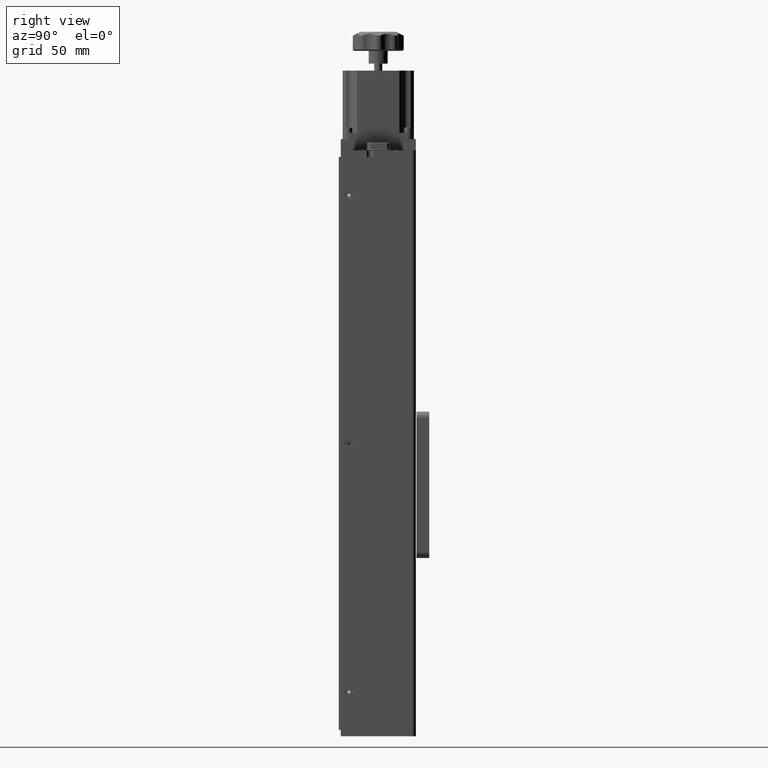
[diagram: clean part render]
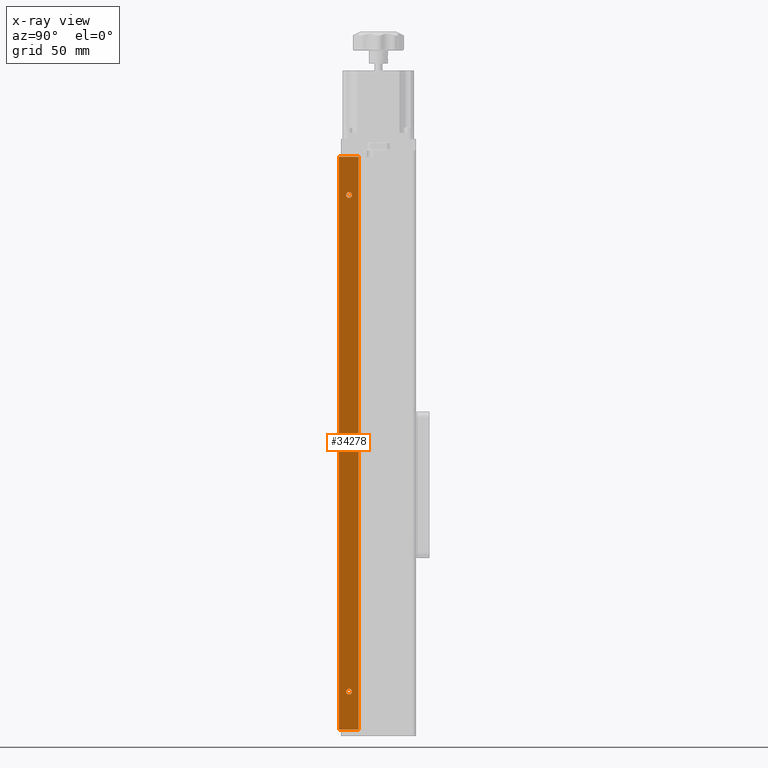
[diagram: x-ray — body ghosted, one internal face saturated and labeled with its STEP entity id]
A machine part, right view, then the same camera in x-ray: the body is ghosted and one INTERNAL B-rep face — a face not visible from any outside direction — is saturated and labeled: STEP entity #34278.
In plain terms, the highlighted planar face has unit normal (1, 0, 0).
Its self-contained STEP definition (entity closure, byte-faithful):
#306 = AXIS2_PLACEMENT_3D ( 'NONE', #2982, #26098, #6286 ) ;
#632 = AXIS2_PLACEMENT_3D ( 'NONE', #38004, #18229, #41346 ) ;
#735 = DIRECTION ( 'NONE',  ( 0.0000000000000000000, 0.0000000000000000000, -1.000000000000000000 ) ) ;
#2041 = CARTESIAN_POINT ( 'NONE',  ( -69.61080835603993900, -10.41765062064795300, 225.0000000000000300 ) ) ;
#2102 = CARTESIAN_POINT ( 'NONE',  ( -69.61080835603993900, -2.417650620647951800, -195.0000000000000300 ) ) ;
#2116 = CIRCLE ( 'NONE', #30042, 2.250000000000029800 ) ;
#2982 = CARTESIAN_POINT ( 'NONE',  ( -69.61080835603993900, -2.417650620647951800, 195.0000000000000300 ) ) ;
#3866 = ORIENTED_EDGE ( 'NONE', *, *, #15342, .F. ) ;
#4571 = CARTESIAN_POINT ( 'NONE',  ( -69.61080835603993900, 5.082349379352006500, -225.0000000000000300 ) ) ;
#5332 = CARTESIAN_POINT ( 'NONE',  ( -69.61080835603993900, 8.829045197376977700, -225.0000000000000300 ) ) ;
#5394 = DIRECTION ( 'NONE',  ( 0.0000000000000000000, 0.0000000000000000000, -1.000000000000000000 ) ) ;
#5622 = VERTEX_POINT ( 'NONE', #29324 ) ;
#6286 = DIRECTION ( 'NONE',  ( 0.0000000000000000000, 0.0000000000000000000, -1.000000000000000000 ) ) ;
#6471 = VECTOR ( 'NONE', #25131, 1000.000000000000000 ) ;
#7500 = LINE ( 'NONE', #5332, #6471 ) ;
#7646 = EDGE_CURVE ( 'NONE', #10640, #13751, #2116, .T. ) ;
#7776 = DIRECTION ( 'NONE',  ( 1.000000000000000000, 0.0000000000000000000, 0.0000000000000000000 ) ) ;
#7921 = AXIS2_PLACEMENT_3D ( 'NONE', #32620, #12791, #35919 ) ;
#8473 = FACE_OUTER_BOUND ( 'NONE', #37467, .T. ) ;
#8854 = CARTESIAN_POINT ( 'NONE',  ( -69.61080835603993900, -10.41765062064795100, -225.0000000000000300 ) ) ;
#10322 = ORIENTED_EDGE ( 'NONE', *, *, #20515, .T. ) ;
#10487 = ORIENTED_EDGE ( 'NONE', *, *, #38634, .T. ) ;
#10640 = VERTEX_POINT ( 'NONE', #36114 ) ;
#12181 = DIRECTION ( 'NONE',  ( 0.0000000000000000000, 0.0000000000000000000, -1.000000000000000000 ) ) ;
#12572 = CIRCLE ( 'NONE', #7921, 2.250000000000029800 ) ;
#12590 = CARTESIAN_POINT ( 'NONE',  ( -69.61080835603993900, 5.082349379352006500, 225.0000000000000300 ) ) ;
#12791 = DIRECTION ( 'NONE',  ( 1.000000000000000000, 0.0000000000000000000, 0.0000000000000000000 ) ) ;
#13013 = CIRCLE ( 'NONE', #36101, 2.250000000000029800 ) ;
#13751 = VERTEX_POINT ( 'NONE', #26458 ) ;
#13883 = CARTESIAN_POINT ( 'NONE',  ( -69.61080835603993900, -2.417650620647951800, -197.2500000000000600 ) ) ;
#15342 = EDGE_CURVE ( 'NONE', #38366, #18586, #7500, .T. ) ;
#15412 = CARTESIAN_POINT ( 'NONE',  ( -69.61080835603993900, 5.082349379352006500, 225.0000000000000300 ) ) ;
#15478 = CARTESIAN_POINT ( 'NONE',  ( -69.61080835603993900, 8.829045197376977700, 225.0000000000000300 ) ) ;
#15797 = LINE ( 'NONE', #15412, #41140 ) ;
#16896 = EDGE_CURVE ( 'NONE', #27736, #22071, #22205, .T. ) ;
#17250 = FACE_BOUND ( 'NONE', #40806, .T. ) ;
#17355 = DIRECTION ( 'NONE',  ( 1.000000000000000000, 0.0000000000000000000, 0.0000000000000000000 ) ) ;
#17584 = ORIENTED_EDGE ( 'NONE', *, *, #26678, .T. ) ;
#17613 = ORIENTED_EDGE ( 'NONE', *, *, #36895, .F. ) ;
#18229 = DIRECTION ( 'NONE',  ( 1.000000000000000000, 0.0000000000000000000, 0.0000000000000000000 ) ) ;
#18264 = AXIS2_PLACEMENT_3D ( 'NONE', #27626, #7776, #30956 ) ;
#18586 = VERTEX_POINT ( 'NONE', #4571 ) ;
#18742 = DIRECTION ( 'NONE',  ( -0.0000000000000000000, 0.0000000000000000000, 1.000000000000000000 ) ) ;
#18907 = VECTOR ( 'NONE', #38601, 1000.000000000000000 ) ;
#19064 = ORIENTED_EDGE ( 'NONE', *, *, #7646, .T. ) ;
#19788 = VERTEX_POINT ( 'NONE', #2041 ) ;
#19907 = LINE ( 'NONE', #15478, #18907 ) ;
#20493 = DIRECTION ( 'NONE',  ( 1.000000000000000000, 0.0000000000000000000, 0.0000000000000000000 ) ) ;
#20515 = EDGE_CURVE ( 'NONE', #19788, #37581, #19907, .T. ) ;
#21382 = PLANE ( 'NONE',  #632 ) ;
#22071 = VERTEX_POINT ( 'NONE', #31851 ) ;
#22205 = CIRCLE ( 'NONE', #18264, 2.250000000000029800 ) ;
#23199 = ORIENTED_EDGE ( 'NONE', *, *, #30597, .T. ) ;
#25131 = DIRECTION ( 'NONE',  ( -0.0000000000000000000, 1.000000000000000000, -0.0000000000000000000 ) ) ;
#25195 = DIRECTION ( 'NONE',  ( 1.000000000000000000, 0.0000000000000000000, 0.0000000000000000000 ) ) ;
#25247 = EDGE_CURVE ( 'NONE', #28830, #5622, #13013, .T. ) ;
#26098 = DIRECTION ( 'NONE',  ( 1.000000000000000000, 0.0000000000000000000, 0.0000000000000000000 ) ) ;
#26458 = CARTESIAN_POINT ( 'NONE',  ( -69.61080835603993900, -2.417650620647951800, 192.7500000000000000 ) ) ;
#26678 = EDGE_CURVE ( 'NONE', #22071, #27736, #12572, .T. ) ;
#27626 = CARTESIAN_POINT ( 'NONE',  ( -69.61080835603993900, -2.417650620647951800, 2.775557561562891400E-014 ) ) ;
#27736 = VERTEX_POINT ( 'NONE', #38140 ) ;
#28830 = VERTEX_POINT ( 'NONE', #13883 ) ;
#29167 = VECTOR ( 'NONE', #12181, 1000.000000000000000 ) ;
#29324 = CARTESIAN_POINT ( 'NONE',  ( -69.61080835603993900, -2.417650620647951300, -192.7500000000000000 ) ) ;
#30042 = AXIS2_PLACEMENT_3D ( 'NONE', #37138, #17355, #40500 ) ;
#30597 = EDGE_CURVE ( 'NONE', #5622, #28830, #31868, .T. ) ;
#30956 = DIRECTION ( 'NONE',  ( 0.0000000000000000000, 0.0000000000000000000, -1.000000000000000000 ) ) ;
#30969 = ORIENTED_EDGE ( 'NONE', *, *, #37529, .F. ) ;
#31851 = CARTESIAN_POINT ( 'NONE',  ( -69.61080835603993900, -2.417650620647951300, 2.250000000000057700 ) ) ;
#31868 = CIRCLE ( 'NONE', #39748, 2.250000000000029800 ) ;
#32620 = CARTESIAN_POINT ( 'NONE',  ( -69.61080835603993900, -2.417650620647951800, 2.775557561562891400E-014 ) ) ;
#33944 = ORIENTED_EDGE ( 'NONE', *, *, #25247, .T. ) ;
#34278 = ADVANCED_FACE ( 'NONE', ( #34865, #17250, #42629, #8473 ), #21382, .F. ) ;
#34865 = FACE_BOUND ( 'NONE', #39031, .T. ) ;
#35758 = EDGE_LOOP ( 'NONE', ( #10487, #19064 ) ) ;
#35919 = DIRECTION ( 'NONE',  ( 0.0000000000000000000, 0.0000000000000000000, -1.000000000000000000 ) ) ;
#36101 = AXIS2_PLACEMENT_3D ( 'NONE', #2102, #25195, #5394 ) ;
#36114 = CARTESIAN_POINT ( 'NONE',  ( -69.61080835603993900, -2.417650620647951300, 197.2500000000000600 ) ) ;
#36895 = EDGE_CURVE ( 'NONE', #18586, #37581, #15797, .T. ) ;
#37080 = CARTESIAN_POINT ( 'NONE',  ( -69.61080835603993900, -10.41765062064795100, -225.0000000000000300 ) ) ;
#37138 = CARTESIAN_POINT ( 'NONE',  ( -69.61080835603993900, -2.417650620647951800, 195.0000000000000300 ) ) ;
#37467 = EDGE_LOOP ( 'NONE', ( #3866, #30969, #10322, #17613 ) ) ;
#37529 = EDGE_CURVE ( 'NONE', #19788, #38366, #37907, .T. ) ;
#37581 = VERTEX_POINT ( 'NONE', #12590 ) ;
#37907 = LINE ( 'NONE', #8854, #29167 ) ;
#38004 = CARTESIAN_POINT ( 'NONE',  ( -69.61080835603993900, 8.829045197376977700, -225.0000000000000300 ) ) ;
#38140 = CARTESIAN_POINT ( 'NONE',  ( -69.61080835603993900, -2.417650620647951800, -2.250000000000001800 ) ) ;
#38366 = VERTEX_POINT ( 'NONE', #37080 ) ;
#38601 = DIRECTION ( 'NONE',  ( -0.0000000000000000000, 1.000000000000000000, -0.0000000000000000000 ) ) ;
#38634 = EDGE_CURVE ( 'NONE', #13751, #10640, #38774, .T. ) ;
#38774 = CIRCLE ( 'NONE', #306, 2.250000000000029800 ) ;
#39031 = EDGE_LOOP ( 'NONE', ( #33944, #23199 ) ) ;
#39465 = ORIENTED_EDGE ( 'NONE', *, *, #16896, .T. ) ;
#39748 = AXIS2_PLACEMENT_3D ( 'NONE', #40322, #20493, #735 ) ;
#40322 = CARTESIAN_POINT ( 'NONE',  ( -69.61080835603993900, -2.417650620647951800, -195.0000000000000300 ) ) ;
#40500 = DIRECTION ( 'NONE',  ( 0.0000000000000000000, 0.0000000000000000000, -1.000000000000000000 ) ) ;
#40806 = EDGE_LOOP ( 'NONE', ( #39465, #17584 ) ) ;
#41140 = VECTOR ( 'NONE', #18742, 1000.000000000000000 ) ;
#41346 = DIRECTION ( 'NONE',  ( 0.0000000000000000000, 0.0000000000000000000, -1.000000000000000000 ) ) ;
#42629 = FACE_BOUND ( 'NONE', #35758, .T. ) ;